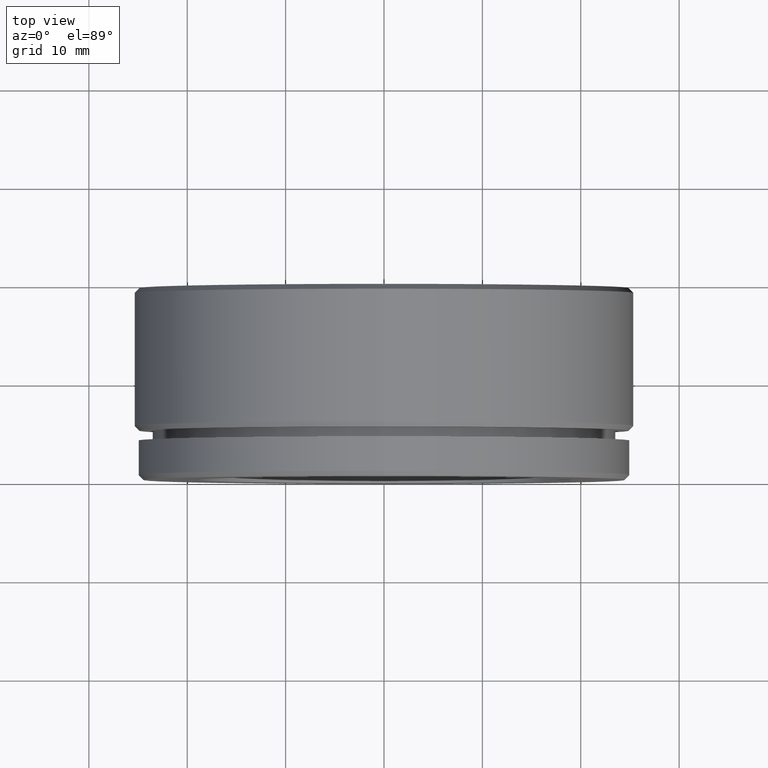
[diagram: clean part render]
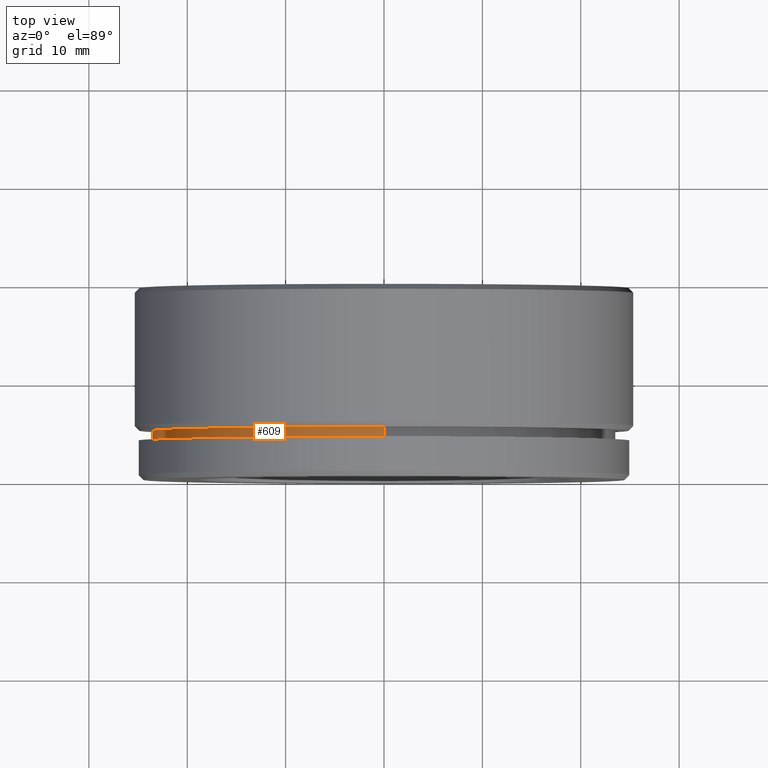
[diagram: same view with one face highlighted and labeled with its STEP entity id]
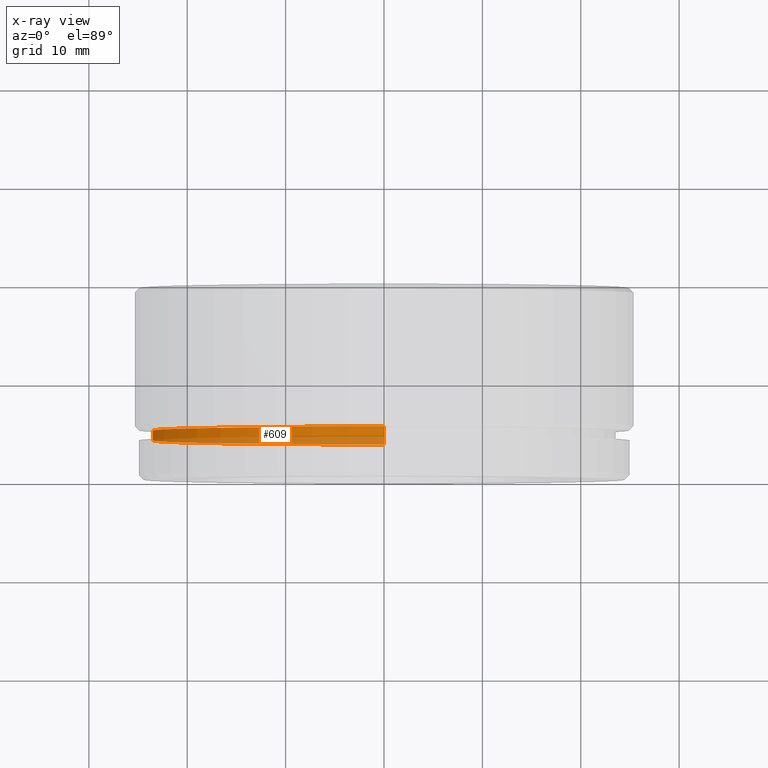
[diagram: x-ray of the same camera — body ghosted, the highlighted face saturated]
A machine part, top view. The second image highlights one B-rep face of the part: STEP entity #609.
The next image is the same camera in x-ray: the body ghosted, the highlighted face saturated — about 39% of this face is hidden behind the body in this view.
In plain terms, the highlighted cylindrical surface (partial cylindrical patch) has radius 23.5 mm, axis along (-0, -1, -0).
Its self-contained STEP definition (entity closure, byte-faithful):
#46 = DIRECTION ( 'NONE',  ( 0.0000000000000000000, 0.0000000000000000000, -1.000000000000000000 ) ) ;
#58 = LINE ( 'NONE', #539, #72 ) ;
#72 = VECTOR ( 'NONE', #361, 1000.000000000000000 ) ;
#133 = DIRECTION ( 'NONE',  ( -0.0000000000000000000, -1.000000000000000000, -0.0000000000000000000 ) ) ;
#226 = VERTEX_POINT ( 'NONE', #362 ) ;
#327 = CYLINDRICAL_SURFACE ( 'NONE', #524, 23.50000000000000000 ) ;
#349 = VERTEX_POINT ( 'NONE', #823 ) ;
#361 = DIRECTION ( 'NONE',  ( -0.0000000000000000000, -1.000000000000000000, -0.0000000000000000000 ) ) ;
#362 = CARTESIAN_POINT ( 'NONE',  ( 0.0000000000000000000, 5.000000000000000000, -23.50000000000000000 ) ) ;
#371 = FACE_OUTER_BOUND ( 'NONE', #372, .T. ) ;
#372 = EDGE_LOOP ( 'NONE', ( #420, #673, #825, #516 ) ) ;
#384 = VERTEX_POINT ( 'NONE', #968 ) ;
#420 = ORIENTED_EDGE ( 'NONE', *, *, #719, .F. ) ;
#424 = DIRECTION ( 'NONE',  ( 0.0000000000000000000, 0.0000000000000000000, -1.000000000000000000 ) ) ;
#428 = EDGE_CURVE ( 'NONE', #349, #1019, #701, .T. ) ;
#435 = AXIS2_PLACEMENT_3D ( 'NONE', #796, #1102, #735 ) ;
#438 = EDGE_CURVE ( 'NONE', #226, #1019, #898, .T. ) ;
#516 = ORIENTED_EDGE ( 'NONE', *, *, #428, .F. ) ;
#524 = AXIS2_PLACEMENT_3D ( 'NONE', #637, #133, #46 ) ;
#539 = CARTESIAN_POINT ( 'NONE',  ( 2.877919977996280300E-015, 0.0000000000000000000, 23.50000000000000000 ) ) ;
#547 = VECTOR ( 'NONE', #684, 1000.000000000000000 ) ;
#609 = ADVANCED_FACE ( 'NONE', ( #371 ), #327, .T. ) ;
#637 = CARTESIAN_POINT ( 'NONE',  ( 0.0000000000000000000, 0.0000000000000000000, 0.0000000000000000000 ) ) ;
#673 = ORIENTED_EDGE ( 'NONE', *, *, #861, .T. ) ;
#684 = DIRECTION ( 'NONE',  ( -0.0000000000000000000, -1.000000000000000000, -0.0000000000000000000 ) ) ;
#687 = CARTESIAN_POINT ( 'NONE',  ( 0.0000000000000000000, 4.000000000000000000, -23.49999999999999600 ) ) ;
#701 = CIRCLE ( 'NONE', #702, 23.49999999999999600 ) ;
#702 = AXIS2_PLACEMENT_3D ( 'NONE', #1093, #994, #424 ) ;
#719 = EDGE_CURVE ( 'NONE', #384, #349, #58, .T. ) ;
#735 = DIRECTION ( 'NONE',  ( 0.0000000000000000000, 0.0000000000000000000, -1.000000000000000000 ) ) ;
#796 = CARTESIAN_POINT ( 'NONE',  ( 0.0000000000000000000, 5.000000000000000000, 0.0000000000000000000 ) ) ;
#807 = CARTESIAN_POINT ( 'NONE',  ( 0.0000000000000000000, 0.0000000000000000000, -23.50000000000000000 ) ) ;
#823 = CARTESIAN_POINT ( 'NONE',  ( 2.877919977996279900E-015, 4.000000000000000000, 23.49999999999999600 ) ) ;
#825 = ORIENTED_EDGE ( 'NONE', *, *, #438, .T. ) ;
#841 = CIRCLE ( 'NONE', #435, 23.50000000000000000 ) ;
#861 = EDGE_CURVE ( 'NONE', #384, #226, #841, .T. ) ;
#898 = LINE ( 'NONE', #807, #547 ) ;
#968 = CARTESIAN_POINT ( 'NONE',  ( 2.877919977996280300E-015, 5.000000000000000000, 23.50000000000000000 ) ) ;
#994 = DIRECTION ( 'NONE',  ( -0.0000000000000000000, -1.000000000000000000, -0.0000000000000000000 ) ) ;
#1019 = VERTEX_POINT ( 'NONE', #687 ) ;
#1093 = CARTESIAN_POINT ( 'NONE',  ( 0.0000000000000000000, 4.000000000000000000, 0.0000000000000000000 ) ) ;
#1102 = DIRECTION ( 'NONE',  ( -0.0000000000000000000, -1.000000000000000000, -0.0000000000000000000 ) ) ;